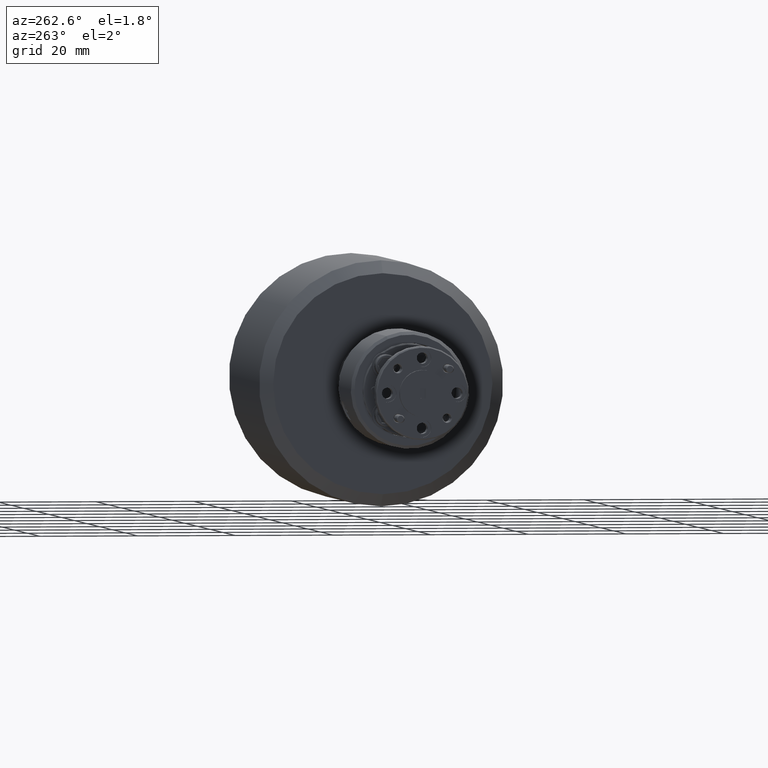
[diagram: clean part render]
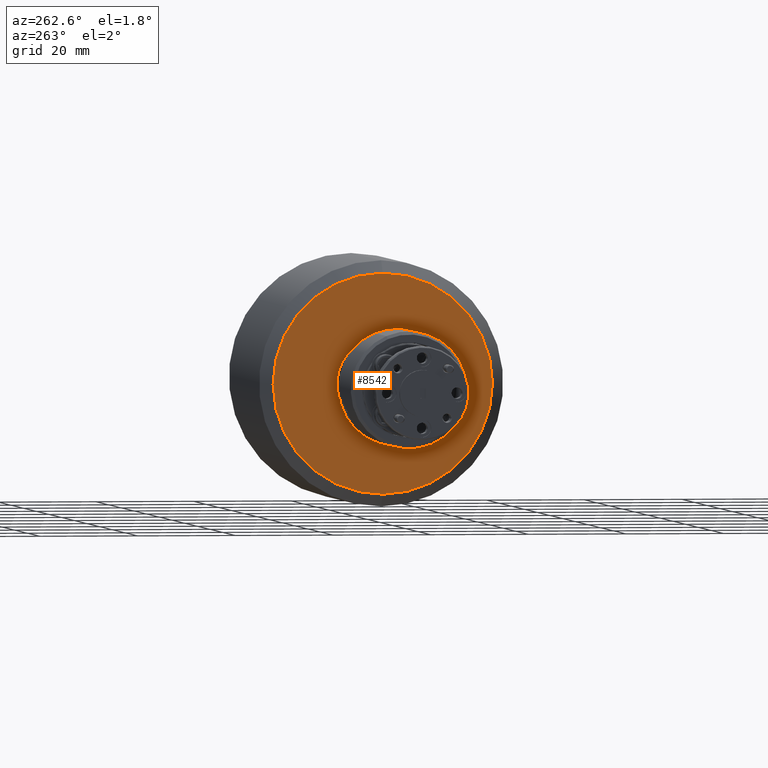
[diagram: same view with one face highlighted and labeled with its STEP entity id]
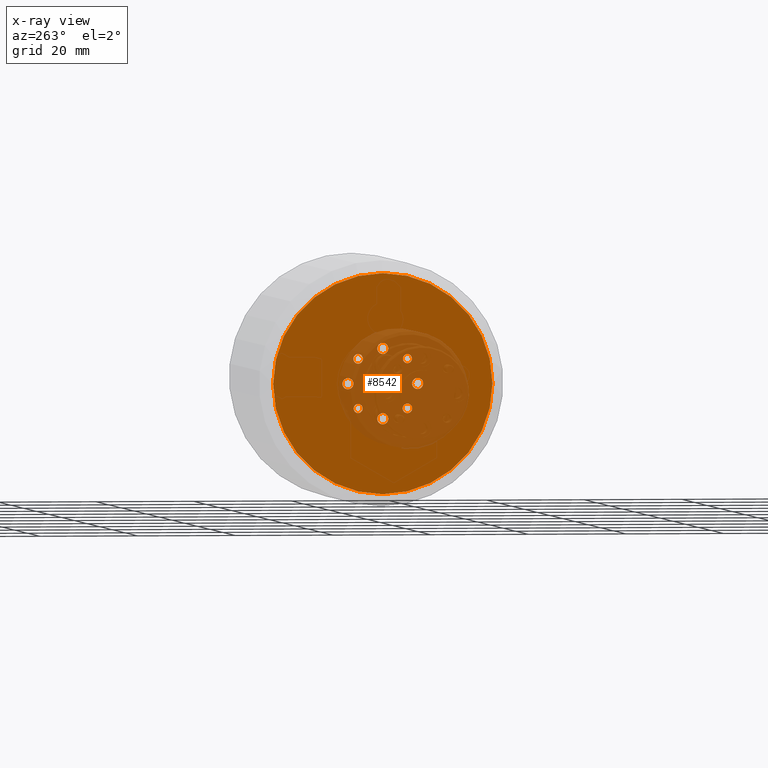
[diagram: x-ray of the same camera — body ghosted, the highlighted face saturated]
A machine part, auxiliary view. The second image highlights one B-rep face of the part: STEP entity #8542.
The next image is the same camera in x-ray: the body ghosted, the highlighted face saturated — about 31% of this face is hidden behind the body in this view.
In plain terms, the highlighted planar face has unit normal (-1, 0, 0).
Its self-contained STEP definition (entity closure, byte-faithful):
#505 = DIRECTION ( 'NONE',  ( -1.000000000000000000, -0.0000000000000000000, -0.0000000000000000000 ) ) ;
#957 = EDGE_CURVE ( 'NONE', #97054, #53642, #80066, .T. ) ;
#1145 = CIRCLE ( 'NONE', #77330, 0.9778999999999968800 ) ;
#1327 = VERTEX_POINT ( 'NONE', #23007 ) ;
#1942 = EDGE_CURVE ( 'NONE', #97440, #5264, #39251, .T. ) ;
#2422 = VECTOR ( 'NONE', #85121, 1000.000000000000000 ) ;
#3038 = CIRCLE ( 'NONE', #30300, 1.130299999999986800 ) ;
#3300 = DIRECTION ( 'NONE',  ( 0.0000000000000000000, 0.0000000000000000000, 1.000000000000000000 ) ) ;
#3582 = DIRECTION ( 'NONE',  ( 0.0000000000000000000, 0.0000000000000000000, 1.000000000000000000 ) ) ;
#3603 = CARTESIAN_POINT ( 'NONE',  ( 9.936688618866256200, 40.60670321229363100, 43.36040528329540700 ) ) ;
#3612 = EDGE_CURVE ( 'NONE', #85536, #101744, #50966, .T. ) ;
#3887 = EDGE_CURVE ( 'NONE', #80326, #20443, #48326, .T. ) ;
#4152 = DIRECTION ( 'NONE',  ( 0.0000000000000000000, 0.0000000000000000000, -1.000000000000000000 ) ) ;
#4415 = VERTEX_POINT ( 'NONE', #35551 ) ;
#4649 = DIRECTION ( 'NONE',  ( -1.000000000000000000, -0.0000000000000000000, -0.0000000000000000000 ) ) ;
#4709 = AXIS2_PLACEMENT_3D ( 'NONE', #27330, #51999, #75326 ) ;
#4799 = DIRECTION ( 'NONE',  ( 0.0000000000000000000, 0.0000000000000000000, 1.000000000000000000 ) ) ;
#5264 = VERTEX_POINT ( 'NONE', #22959 ) ;
#5784 = CIRCLE ( 'NONE', #42808, 1.130300000000000700 ) ;
#5845 = LINE ( 'NONE', #94682, #81611 ) ;
#6527 = AXIS2_PLACEMENT_3D ( 'NONE', #38301, #54135, #103538 ) ;
#7043 = CARTESIAN_POINT ( 'NONE',  ( 9.936688618866256200, 28.41922427225094000, 38.46589688397605000 ) ) ;
#7321 = CARTESIAN_POINT ( 'NONE',  ( 9.936688618866256200, 36.19479927225279400, 38.60560134325452000 ) ) ;
#7514 = DIRECTION ( 'NONE',  ( -1.000000000000000000, -0.0000000000000000000, -0.0000000000000000000 ) ) ;
#7614 = DIRECTION ( 'NONE',  ( 0.0000000000000000000, 0.0000000000000000000, 1.000000000000000000 ) ) ;
#7820 = CARTESIAN_POINT ( 'NONE',  ( 9.936688618866256200, 35.55979927225279600, 31.32850134325451600 ) ) ;
#7880 = DIRECTION ( 'NONE',  ( 0.0000000000000000000, 0.0000000000000000000, 1.000000000000000000 ) ) ;
#8022 = EDGE_CURVE ( 'NONE', #39429, #104680, #61617, .T. ) ;
#8088 = DIRECTION ( 'NONE',  ( -1.000000000000000000, -0.0000000000000000000, -0.0000000000000000000 ) ) ;
#8223 = CARTESIAN_POINT ( 'NONE',  ( 9.936688618866256200, 28.42239927225279000, 37.33560134325451700 ) ) ;
#8542 = ADVANCED_FACE ( 'NONE', ( #9840, #32631, #46477, #70444, #11159, #38885, #74241, #23672, #17389, #93195 ), #47144, .T. ) ;
#8723 = EDGE_CURVE ( 'NONE', #34648, #30242, #76660, .T. ) ;
#8829 = DIRECTION ( 'NONE',  ( 0.0000000000000000000, 0.0000000000000000000, 1.000000000000000000 ) ) ;
#9028 = EDGE_LOOP ( 'NONE', ( #102005, #81003, #55505, #38131 ) ) ;
#9135 = EDGE_CURVE ( 'NONE', #73668, #53098, #67729, .T. ) ;
#9840 = FACE_BOUND ( 'NONE', #56060, .T. ) ;
#9885 = CARTESIAN_POINT ( 'NONE',  ( 9.936688618866256200, 34.92479927225279800, 38.60560134325452000 ) ) ;
#10471 = EDGE_CURVE ( 'NONE', #5264, #38574, #5784, .T. ) ;
#10916 = AXIS2_PLACEMENT_3D ( 'NONE', #79744, #46572, #15118 ) ;
#11159 = FACE_BOUND ( 'NONE', #56767, .T. ) ;
#11649 = ORIENTED_EDGE ( 'NONE', *, *, #9135, .F. ) ;
#11746 = CARTESIAN_POINT ( 'NONE',  ( 9.936688618866256200, 36.19479927225279400, 38.60560134325452000 ) ) ;
#11806 = EDGE_LOOP ( 'NONE', ( #30874, #17792 ) ) ;
#11976 = CARTESIAN_POINT ( 'NONE',  ( 9.936688618866256200, 28.42239927225279000, 37.33560134325451700 ) ) ;
#12448 = CARTESIAN_POINT ( 'NONE',  ( 9.936688618866256200, 34.42950373153126300, 30.19502634325270300 ) ) ;
#12778 = DIRECTION ( 'NONE',  ( 0.0000000000000000000, 0.0000000000000000000, 1.000000000000000000 ) ) ;
#13165 = AXIS2_PLACEMENT_3D ( 'NONE', #66189, #83172, #58093 ) ;
#13877 = VERTEX_POINT ( 'NONE', #54983 ) ;
#14732 = DIRECTION ( 'NONE',  ( -1.000000000000000000, -0.0000000000000000000, -0.0000000000000000000 ) ) ;
#14814 = DIRECTION ( 'NONE',  ( 0.0000000000000000000, 0.0000000000000000000, 1.000000000000000000 ) ) ;
#14876 = VERTEX_POINT ( 'NONE', #79901 ) ;
#15118 = DIRECTION ( 'NONE',  ( 0.0000000000000000000, 0.0000000000000000000, 1.000000000000000000 ) ) ;
#15454 = CARTESIAN_POINT ( 'NONE',  ( 9.936688618866256200, 28.41604927225279200, 37.33560134325451700 ) ) ;
#16911 = EDGE_CURVE ( 'NONE', #30242, #34648, #82423, .T. ) ;
#16960 = VERTEX_POINT ( 'NONE', #44144 ) ;
#17205 = DIRECTION ( 'NONE',  ( 0.0000000000000000000, 0.0000000000000000000, 1.000000000000000000 ) ) ;
#17260 = DIRECTION ( 'NONE',  ( -1.000000000000000000, -0.0000000000000000000, -0.0000000000000000000 ) ) ;
#17389 = FACE_BOUND ( 'NONE', #9028, .T. ) ;
#17792 = ORIENTED_EDGE ( 'NONE', *, *, #8022, .F. ) ;
#19347 = DIRECTION ( 'NONE',  ( 0.0000000000000000000, 0.0000000000000000000, 1.000000000000000000 ) ) ;
#19518 = CARTESIAN_POINT ( 'NONE',  ( 9.936688618866256200, 36.69009481297432300, 44.47617634325633400 ) ) ;
#20443 = VERTEX_POINT ( 'NONE', #7321 ) ;
#22027 = AXIS2_PLACEMENT_3D ( 'NONE', #32964, #40713, #57246 ) ;
#22091 = ORIENTED_EDGE ( 'NONE', *, *, #23993, .F. ) ;
#22153 = EDGE_CURVE ( 'NONE', #14876, #64603, #37121, .T. ) ;
#22471 = AXIS2_PLACEMENT_3D ( 'NONE', #23285, #22589, #14814 ) ;
#22581 = EDGE_CURVE ( 'NONE', #98629, #16960, #79985, .T. ) ;
#22589 = DIRECTION ( 'NONE',  ( -1.000000000000000000, -0.0000000000000000000, -0.0000000000000000000 ) ) ;
#22752 = EDGE_CURVE ( 'NONE', #1327, #4415, #59799, .T. ) ;
#22959 = CARTESIAN_POINT ( 'NONE',  ( 9.936688618866256200, 28.42239927225279000, 36.20530134325451900 ) ) ;
#23007 = CARTESIAN_POINT ( 'NONE',  ( 9.936688618866256200, 35.55979927225279600, 14.87565134325452500 ) ) ;
#23258 = EDGE_LOOP ( 'NONE', ( #22091, #91082, #101971, #41035 ) ) ;
#23285 = CARTESIAN_POINT ( 'NONE',  ( 9.936688618866256200, 35.55979927225279600, 44.47300134325452300 ) ) ;
#23437 = CARTESIAN_POINT ( 'NONE',  ( 9.936688618866256200, 35.55979927225279600, 45.60965134325451200 ) ) ;
#23475 = CARTESIAN_POINT ( 'NONE',  ( 9.936688618866256200, 58.01974927225278800, 37.33560134325451700 ) ) ;
#23672 = FACE_BOUND ( 'NONE', #23258, .T. ) ;
#23993 = EDGE_CURVE ( 'NONE', #76235, #14876, #48239, .T. ) ;
#24126 = CARTESIAN_POINT ( 'NONE',  ( 9.936688618866256200, 28.42239927225279000, 38.46590134325452200 ) ) ;
#24488 = ORIENTED_EDGE ( 'NONE', *, *, #42077, .F. ) ;
#25157 = CARTESIAN_POINT ( 'NONE',  ( 9.936688618866256200, 30.51289533221190100, 42.38250528329535200 ) ) ;
#25577 = ORIENTED_EDGE ( 'NONE', *, *, #45517, .F. ) ;
#25953 = EDGE_CURVE ( 'NONE', #64016, #73668, #51673, .T. ) ;
#25956 = CIRCLE ( 'NONE', #73435, 1.130299999999986800 ) ;
#25991 = ORIENTED_EDGE ( 'NONE', *, *, #83910, .F. ) ;
#26698 = CARTESIAN_POINT ( 'NONE',  ( 9.936688618866256200, 36.69009481297432300, 30.19502634325278100 ) ) ;
#26856 = CARTESIAN_POINT ( 'NONE',  ( 9.936688618866256200, 42.69719927225279600, 36.20530134325451900 ) ) ;
#27139 = DIRECTION ( 'NONE',  ( -1.000000000000000000, -0.0000000000000000000, -0.0000000000000000000 ) ) ;
#27330 = CARTESIAN_POINT ( 'NONE',  ( 9.936688618866256200, 40.60670321229363100, 42.38250528329540900 ) ) ;
#27934 = DIRECTION ( 'NONE',  ( -1.000000000000000000, -0.0000000000000000000, -0.0000000000000000000 ) ) ;
#28048 = CARTESIAN_POINT ( 'NONE',  ( 9.936688618866256200, 42.70037427225448600, 38.46589688397605000 ) ) ;
#28990 = AXIS2_PLACEMENT_3D ( 'NONE', #90041, #17260, #43784 ) ;
#29078 = CARTESIAN_POINT ( 'NONE',  ( 9.936688618866256200, 30.51289533221195400, 33.26659740321362300 ) ) ;
#30242 = VERTEX_POINT ( 'NONE', #3603 ) ;
#30300 = AXIS2_PLACEMENT_3D ( 'NONE', #15454, #71942, #42327 ) ;
#30373 = AXIS2_PLACEMENT_3D ( 'NONE', #25157, #505, #81302 ) ;
#30415 = CARTESIAN_POINT ( 'NONE',  ( 9.936688618866256200, 30.51289533221195400, 31.31079740321363000 ) ) ;
#30874 = ORIENTED_EDGE ( 'NONE', *, *, #59888, .F. ) ;
#31682 = CARTESIAN_POINT ( 'NONE',  ( 9.936688618866256200, 40.60670321229368100, 31.36794740321368400 ) ) ;
#32289 = CIRCLE ( 'NONE', #41001, 1.130300000000000700 ) ;
#32485 = DIRECTION ( 'NONE',  ( -1.000000000000000000, -0.0000000000000000000, -0.0000000000000000000 ) ) ;
#32631 = FACE_BOUND ( 'NONE', #83256, .T. ) ;
#32964 = CARTESIAN_POINT ( 'NONE',  ( 9.936688618866256200, 42.69719927225279600, 37.33560134325451700 ) ) ;
#33772 = ORIENTED_EDGE ( 'NONE', *, *, #49283, .F. ) ;
#34648 = VERTEX_POINT ( 'NONE', #35859 ) ;
#34677 = AXIS2_PLACEMENT_3D ( 'NONE', #87831, #14732, #104679 ) ;
#34940 = DIRECTION ( 'NONE',  ( 0.0000000000000000000, 0.0000000000000000000, 1.000000000000000000 ) ) ;
#35389 = ORIENTED_EDGE ( 'NONE', *, *, #46511, .F. ) ;
#35434 = VERTEX_POINT ( 'NONE', #12448 ) ;
#35551 = CARTESIAN_POINT ( 'NONE',  ( 9.936688618866256200, 35.55979927225279600, 59.79555134325450900 ) ) ;
#35859 = CARTESIAN_POINT ( 'NONE',  ( 9.936688618866256200, 40.60670321229363100, 41.40460528329541000 ) ) ;
#35884 = DIRECTION ( 'NONE',  ( -1.000000000000000000, -0.0000000000000000000, -0.0000000000000000000 ) ) ;
#36089 = CARTESIAN_POINT ( 'NONE',  ( 9.936688618866256200, 42.70354927225280100, 37.33560134325451700 ) ) ;
#36940 = CARTESIAN_POINT ( 'NONE',  ( 9.936688618866256200, 30.51289533221195400, 32.28869740321362500 ) ) ;
#37121 = CIRCLE ( 'NONE', #22471, 1.130300000000000700 ) ;
#38131 = ORIENTED_EDGE ( 'NONE', *, *, #97846, .F. ) ;
#38301 = CARTESIAN_POINT ( 'NONE',  ( 9.936688618866256200, 40.60670321229368100, 32.28869740321368200 ) ) ;
#38574 = VERTEX_POINT ( 'NONE', #91887 ) ;
#38885 = FACE_BOUND ( 'NONE', #64918, .T. ) ;
#39251 = CIRCLE ( 'NONE', #40135, 1.130300000000000700 ) ;
#39429 = VERTEX_POINT ( 'NONE', #31682 ) ;
#40135 = AXIS2_PLACEMENT_3D ( 'NONE', #64387, #65428, #73224 ) ;
#40713 = DIRECTION ( 'NONE',  ( -1.000000000000000000, -0.0000000000000000000, -0.0000000000000000000 ) ) ;
#41001 = AXIS2_PLACEMENT_3D ( 'NONE', #8223, #48425, #7880 ) ;
#41035 = ORIENTED_EDGE ( 'NONE', *, *, #22153, .F. ) ;
#41816 = CIRCLE ( 'NONE', #34677, 1.130299999999986800 ) ;
#41838 = CARTESIAN_POINT ( 'NONE',  ( 9.936688618866256200, 28.41604927225279200, 37.33560134325451700 ) ) ;
#42077 = EDGE_CURVE ( 'NONE', #54083, #64016, #66525, .T. ) ;
#42327 = DIRECTION ( 'NONE',  ( 0.0000000000000000000, 0.0000000000000000000, 1.000000000000000000 ) ) ;
#42628 = AXIS2_PLACEMENT_3D ( 'NONE', #36089, #84109, #3300 ) ;
#42742 = AXIS2_PLACEMENT_3D ( 'NONE', #50510, #58616, #57924 ) ;
#42808 = AXIS2_PLACEMENT_3D ( 'NONE', #11976, #27139, #19347 ) ;
#42992 = CARTESIAN_POINT ( 'NONE',  ( 9.936688618866256200, 30.51289533221190100, 43.30325528329535000 ) ) ;
#43174 = CARTESIAN_POINT ( 'NONE',  ( 9.936688618866256200, 34.92479927225279800, 38.60560134325452000 ) ) ;
#43683 = CARTESIAN_POINT ( 'NONE',  ( 9.936688618866256200, 35.55979927225279600, 37.33560134325451700 ) ) ;
#43784 = DIRECTION ( 'NONE',  ( 0.0000000000000000000, 0.0000000000000000000, 1.000000000000000000 ) ) ;
#43956 = AXIS2_PLACEMENT_3D ( 'NONE', #41838, #96884, #82395 ) ;
#44043 = LINE ( 'NONE', #11746, #2422 ) ;
#44144 = CARTESIAN_POINT ( 'NONE',  ( 9.936688618866256200, 34.92479927225279100, 36.06560134325452100 ) ) ;
#44450 = EDGE_CURVE ( 'NONE', #53098, #97054, #99114, .T. ) ;
#45251 = CARTESIAN_POINT ( 'NONE',  ( 9.936688618866256200, 28.41604927225279200, 38.46590134325450800 ) ) ;
#45517 = EDGE_CURVE ( 'NONE', #101744, #85536, #91493, .T. ) ;
#46477 = FACE_BOUND ( 'NONE', #11806, .T. ) ;
#46511 = EDGE_CURVE ( 'NONE', #53642, #54083, #88966, .T. ) ;
#46572 = DIRECTION ( 'NONE',  ( -1.000000000000000000, -0.0000000000000000000, -0.0000000000000000000 ) ) ;
#46782 = EDGE_CURVE ( 'NONE', #64603, #73112, #58531, .T. ) ;
#46832 = CIRCLE ( 'NONE', #72546, 0.9778999999999968800 ) ;
#47144 = PLANE ( 'NONE',  #49978 ) ;
#47806 = CIRCLE ( 'NONE', #13165, 1.130299999999990300 ) ;
#47987 = ORIENTED_EDGE ( 'NONE', *, *, #61994, .F. ) ;
#48239 = CIRCLE ( 'NONE', #103263, 1.130300000000000700 ) ;
#48326 = LINE ( 'NONE', #9885, #96348 ) ;
#48425 = DIRECTION ( 'NONE',  ( -1.000000000000000000, -0.0000000000000000000, -0.0000000000000000000 ) ) ;
#48724 = DIRECTION ( 'NONE',  ( -0.0000000000000000000, 1.707404996040164300E-016, 1.000000000000000000 ) ) ;
#49283 = EDGE_CURVE ( 'NONE', #35434, #81497, #58818, .T. ) ;
#49978 = AXIS2_PLACEMENT_3D ( 'NONE', #23475, #104602, #55222 ) ;
#50510 = CARTESIAN_POINT ( 'NONE',  ( 9.936688618866256200, 35.55979927225279600, 37.33560134325451700 ) ) ;
#50966 = CIRCLE ( 'NONE', #91036, 0.9207499999999979600 ) ;
#51600 = ORIENTED_EDGE ( 'NONE', *, *, #1942, .F. ) ;
#51673 = CIRCLE ( 'NONE', #61566, 1.130300000000000700 ) ;
#51999 = DIRECTION ( 'NONE',  ( -1.000000000000000000, -0.0000000000000000000, -0.0000000000000000000 ) ) ;
#52031 = DIRECTION ( 'NONE',  ( -1.000000000000000000, -0.0000000000000000000, -0.0000000000000000000 ) ) ;
#52260 = CIRCLE ( 'NONE', #42742, 22.45994999999999200 ) ;
#53098 = VERTEX_POINT ( 'NONE', #28048 ) ;
#53642 = VERTEX_POINT ( 'NONE', #86014 ) ;
#53651 = CARTESIAN_POINT ( 'NONE',  ( 9.936688618866256200, 30.51289533221190100, 42.38250528329535200 ) ) ;
#53714 = ORIENTED_EDGE ( 'NONE', *, *, #67177, .F. ) ;
#54083 = VERTEX_POINT ( 'NONE', #91613 ) ;
#54135 = DIRECTION ( 'NONE',  ( -1.000000000000000000, -0.0000000000000000000, -0.0000000000000000000 ) ) ;
#54983 = CARTESIAN_POINT ( 'NONE',  ( 9.936688618866256200, 28.41604927225279200, 36.20530134325453300 ) ) ;
#55222 = DIRECTION ( 'NONE',  ( 0.0000000000000000000, 0.0000000000000000000, 1.000000000000000000 ) ) ;
#55505 = ORIENTED_EDGE ( 'NONE', *, *, #3887, .F. ) ;
#56060 = EDGE_LOOP ( 'NONE', ( #66008, #53714 ) ) ;
#56110 = DIRECTION ( 'NONE',  ( -1.000000000000000000, -0.0000000000000000000, -0.0000000000000000000 ) ) ;
#56767 = EDGE_LOOP ( 'NONE', ( #24488, #35389, #98864, #59487, #11649, #81854 ) ) ;
#57054 = EDGE_CURVE ( 'NONE', #73112, #76235, #41816, .T. ) ;
#57126 = CARTESIAN_POINT ( 'NONE',  ( 9.936688618866256200, 35.55979927225279600, 30.19820134325451700 ) ) ;
#57246 = DIRECTION ( 'NONE',  ( 0.0000000000000000000, 0.0000000000000000000, 1.000000000000000000 ) ) ;
#57924 = DIRECTION ( 'NONE',  ( 0.0000000000000000000, 0.0000000000000000000, -1.000000000000000000 ) ) ;
#58033 = AXIS2_PLACEMENT_3D ( 'NONE', #97021, #8088, #17205 ) ;
#58093 = DIRECTION ( 'NONE',  ( 0.0000000000000000000, 0.0000000000000000000, 1.000000000000000000 ) ) ;
#58531 = CIRCLE ( 'NONE', #10916, 1.130299999999986800 ) ;
#58616 = DIRECTION ( 'NONE',  ( 1.000000000000000000, -0.0000000000000000000, -0.0000000000000000000 ) ) ;
#58713 = EDGE_CURVE ( 'NONE', #72733, #35434, #47806, .T. ) ;
#58818 = CIRCLE ( 'NONE', #85422, 1.130300000000000700 ) ;
#59487 = ORIENTED_EDGE ( 'NONE', *, *, #44450, .F. ) ;
#59799 = CIRCLE ( 'NONE', #71160, 22.45994999999999200 ) ;
#59807 = EDGE_CURVE ( 'NONE', #38574, #13877, #25956, .T. ) ;
#59888 = EDGE_CURVE ( 'NONE', #104680, #39429, #75307, .T. ) ;
#60202 = CARTESIAN_POINT ( 'NONE',  ( 9.936688618866256200, 28.41604927225279200, 37.33560134325451700 ) ) ;
#60416 = EDGE_CURVE ( 'NONE', #61914, #97440, #32289, .T. ) ;
#61244 = DIRECTION ( 'NONE',  ( 0.0000000000000000000, 0.0000000000000000000, 1.000000000000000000 ) ) ;
#61566 = AXIS2_PLACEMENT_3D ( 'NONE', #81219, #56110, #89721 ) ;
#61617 = CIRCLE ( 'NONE', #58033, 0.9207499999999979600 ) ;
#61658 = EDGE_LOOP ( 'NONE', ( #33772, #79634, #87053 ) ) ;
#61914 = VERTEX_POINT ( 'NONE', #7043 ) ;
#61994 = EDGE_CURVE ( 'NONE', #13877, #75064, #3038, .T. ) ;
#62289 = VECTOR ( 'NONE', #88935, 1000.000000000000000 ) ;
#62783 = EDGE_LOOP ( 'NONE', ( #80519, #25577 ) ) ;
#63238 = DIRECTION ( 'NONE',  ( 0.0000000000000000000, 0.0000000000000000000, 1.000000000000000000 ) ) ;
#64016 = VERTEX_POINT ( 'NONE', #26856 ) ;
#64387 = CARTESIAN_POINT ( 'NONE',  ( 9.936688618866256200, 28.42239927225279000, 37.33560134325451700 ) ) ;
#64603 = VERTEX_POINT ( 'NONE', #103129 ) ;
#64751 = ORIENTED_EDGE ( 'NONE', *, *, #8723, .F. ) ;
#64918 = EDGE_LOOP ( 'NONE', ( #86901, #25991, #47987, #67053, #78445, #51600 ) ) ;
#65428 = DIRECTION ( 'NONE',  ( -1.000000000000000000, -0.0000000000000000000, -0.0000000000000000000 ) ) ;
#66008 = ORIENTED_EDGE ( 'NONE', *, *, #103126, .F. ) ;
#66160 = CARTESIAN_POINT ( 'NONE',  ( 9.936688618866256200, 30.51289533221190100, 41.46175528329535400 ) ) ;
#66189 = CARTESIAN_POINT ( 'NONE',  ( 9.936688618866256200, 35.55979927225279600, 30.19185134325451600 ) ) ;
#66525 = CIRCLE ( 'NONE', #22027, 1.130300000000000700 ) ;
#67053 = ORIENTED_EDGE ( 'NONE', *, *, #59807, .F. ) ;
#67177 = EDGE_CURVE ( 'NONE', #76523, #102022, #1145, .T. ) ;
#67429 = CARTESIAN_POINT ( 'NONE',  ( 9.936688618866256200, 30.51289533221195400, 32.28869740321362500 ) ) ;
#67729 = CIRCLE ( 'NONE', #84699, 1.130300000000000700 ) ;
#69436 = EDGE_CURVE ( 'NONE', #81497, #72733, #93249, .T. ) ;
#70444 = FACE_BOUND ( 'NONE', #62783, .T. ) ;
#70660 = CARTESIAN_POINT ( 'NONE',  ( 9.936688618866256200, 42.70354927225280100, 37.33560134325451700 ) ) ;
#71160 = AXIS2_PLACEMENT_3D ( 'NONE', #43683, #84269, #4152 ) ;
#71942 = DIRECTION ( 'NONE',  ( -1.000000000000000000, -0.0000000000000000000, -0.0000000000000000000 ) ) ;
#72546 = AXIS2_PLACEMENT_3D ( 'NONE', #36940, #101476, #61244 ) ;
#72733 = VERTEX_POINT ( 'NONE', #26698 ) ;
#73112 = VERTEX_POINT ( 'NONE', #23437 ) ;
#73224 = DIRECTION ( 'NONE',  ( 0.0000000000000000000, 0.0000000000000000000, 1.000000000000000000 ) ) ;
#73435 = AXIS2_PLACEMENT_3D ( 'NONE', #60202, #35884, #4799 ) ;
#73668 = VERTEX_POINT ( 'NONE', #90777 ) ;
#74095 = DIRECTION ( 'NONE',  ( 0.0000000000000000000, 1.000000000000000000, 0.0000000000000000000 ) ) ;
#74241 = FACE_BOUND ( 'NONE', #61658, .T. ) ;
#75064 = VERTEX_POINT ( 'NONE', #45251 ) ;
#75307 = CIRCLE ( 'NONE', #6527, 0.9207499999999979600 ) ;
#75326 = DIRECTION ( 'NONE',  ( 0.0000000000000000000, 0.0000000000000000000, 1.000000000000000000 ) ) ;
#75362 = CARTESIAN_POINT ( 'NONE',  ( 9.936688618866256200, 35.55979927225279600, 30.19820134325451700 ) ) ;
#76235 = VERTEX_POINT ( 'NONE', #19518 ) ;
#76523 = VERTEX_POINT ( 'NONE', #30415 ) ;
#76660 = CIRCLE ( 'NONE', #4709, 0.9778999999999968800 ) ;
#77330 = AXIS2_PLACEMENT_3D ( 'NONE', #67429, #27934, #3582 ) ;
#78445 = ORIENTED_EDGE ( 'NONE', *, *, #10471, .F. ) ;
#78728 = DIRECTION ( 'NONE',  ( -1.000000000000000000, -0.0000000000000000000, -0.0000000000000000000 ) ) ;
#79634 = ORIENTED_EDGE ( 'NONE', *, *, #58713, .F. ) ;
#79744 = CARTESIAN_POINT ( 'NONE',  ( 9.936688618866256200, 35.55979927225279600, 44.47935134325452100 ) ) ;
#79901 = CARTESIAN_POINT ( 'NONE',  ( 9.936688618866256200, 35.55979927225279600, 43.34270134325451800 ) ) ;
#79985 = LINE ( 'NONE', #82189, #62289 ) ;
#80066 = CIRCLE ( 'NONE', #84050, 1.130299999999986800 ) ;
#80326 = VERTEX_POINT ( 'NONE', #43174 ) ;
#80519 = ORIENTED_EDGE ( 'NONE', *, *, #3612, .F. ) ;
#81003 = ORIENTED_EDGE ( 'NONE', *, *, #95814, .F. ) ;
#81013 = CARTESIAN_POINT ( 'NONE',  ( 9.936688618866256200, 35.55979927225279600, 44.47300134325452300 ) ) ;
#81219 = CARTESIAN_POINT ( 'NONE',  ( 9.936688618866256200, 42.69719927225279600, 37.33560134325451700 ) ) ;
#81302 = DIRECTION ( 'NONE',  ( 0.0000000000000000000, 0.0000000000000000000, 1.000000000000000000 ) ) ;
#81353 = DIRECTION ( 'NONE',  ( -1.000000000000000000, -0.0000000000000000000, -0.0000000000000000000 ) ) ;
#81497 = VERTEX_POINT ( 'NONE', #7820 ) ;
#81611 = VECTOR ( 'NONE', #48724, 1000.000000000000000 ) ;
#81854 = ORIENTED_EDGE ( 'NONE', *, *, #25953, .F. ) ;
#82189 = CARTESIAN_POINT ( 'NONE',  ( 9.936688618866256200, 34.92479927225279800, 36.06560134325452100 ) ) ;
#82395 = DIRECTION ( 'NONE',  ( 0.0000000000000000000, 0.0000000000000000000, 1.000000000000000000 ) ) ;
#82423 = CIRCLE ( 'NONE', #28990, 0.9778999999999968800 ) ;
#83172 = DIRECTION ( 'NONE',  ( -1.000000000000000000, -0.0000000000000000000, -0.0000000000000000000 ) ) ;
#83256 = EDGE_LOOP ( 'NONE', ( #89660, #64751 ) ) ;
#83497 = DIRECTION ( 'NONE',  ( 0.0000000000000000000, 0.0000000000000000000, 1.000000000000000000 ) ) ;
#83910 = EDGE_CURVE ( 'NONE', #75064, #61914, #87453, .T. ) ;
#84050 = AXIS2_PLACEMENT_3D ( 'NONE', #70660, #7514, #63238 ) ;
#84109 = DIRECTION ( 'NONE',  ( -1.000000000000000000, -0.0000000000000000000, -0.0000000000000000000 ) ) ;
#84269 = DIRECTION ( 'NONE',  ( 1.000000000000000000, -0.0000000000000000000, -0.0000000000000000000 ) ) ;
#84699 = AXIS2_PLACEMENT_3D ( 'NONE', #101299, #4649, #12778 ) ;
#85121 = DIRECTION ( 'NONE',  ( 0.0000000000000000000, -1.707404996040164300E-016, -1.000000000000000000 ) ) ;
#85124 = AXIS2_PLACEMENT_3D ( 'NONE', #89707, #99489, #34940 ) ;
#85422 = AXIS2_PLACEMENT_3D ( 'NONE', #57126, #32485, #8829 ) ;
#85536 = VERTEX_POINT ( 'NONE', #42992 ) ;
#85868 = CARTESIAN_POINT ( 'NONE',  ( 9.936688618866256200, 36.19479927225278700, 36.06560134325452100 ) ) ;
#86014 = CARTESIAN_POINT ( 'NONE',  ( 9.936688618866256200, 42.70354927225280100, 36.20530134325453300 ) ) ;
#86901 = ORIENTED_EDGE ( 'NONE', *, *, #60416, .F. ) ;
#87053 = ORIENTED_EDGE ( 'NONE', *, *, #69436, .F. ) ;
#87242 = DIRECTION ( 'NONE',  ( 0.0000000000000000000, 0.0000000000000000000, 1.000000000000000000 ) ) ;
#87453 = CIRCLE ( 'NONE', #43956, 1.130299999999986800 ) ;
#87831 = CARTESIAN_POINT ( 'NONE',  ( 9.936688618866256200, 35.55979927225279600, 44.47935134325452100 ) ) ;
#88935 = DIRECTION ( 'NONE',  ( -0.0000000000000000000, -1.000000000000000000, -0.0000000000000000000 ) ) ;
#88966 = CIRCLE ( 'NONE', #42628, 1.130299999999986800 ) ;
#89660 = ORIENTED_EDGE ( 'NONE', *, *, #16911, .F. ) ;
#89707 = CARTESIAN_POINT ( 'NONE',  ( 9.936688618866256200, 42.70354927225280100, 37.33560134325451700 ) ) ;
#89721 = DIRECTION ( 'NONE',  ( 0.0000000000000000000, 0.0000000000000000000, 1.000000000000000000 ) ) ;
#90041 = CARTESIAN_POINT ( 'NONE',  ( 9.936688618866256200, 40.60670321229363100, 42.38250528329540900 ) ) ;
#90777 = CARTESIAN_POINT ( 'NONE',  ( 9.936688618866256200, 42.69719927225279600, 38.46590134325452200 ) ) ;
#91036 = AXIS2_PLACEMENT_3D ( 'NONE', #53651, #78728, #87242 ) ;
#91082 = ORIENTED_EDGE ( 'NONE', *, *, #57054, .F. ) ;
#91439 = CARTESIAN_POINT ( 'NONE',  ( 9.936688618866256200, 40.60670321229368100, 33.20944740321368000 ) ) ;
#91493 = CIRCLE ( 'NONE', #30373, 0.9207499999999979600 ) ;
#91613 = CARTESIAN_POINT ( 'NONE',  ( 9.936688618866256200, 42.70037427225448600, 36.20530580253298300 ) ) ;
#91887 = CARTESIAN_POINT ( 'NONE',  ( 9.936688618866256200, 28.41922427225101800, 36.20530580253298300 ) ) ;
#93195 = FACE_OUTER_BOUND ( 'NONE', #101292, .T. ) ;
#93249 = CIRCLE ( 'NONE', #99106, 1.130300000000000700 ) ;
#94682 = CARTESIAN_POINT ( 'NONE',  ( 9.936688618866256200, 34.92479927225279800, 38.60560134325452000 ) ) ;
#95220 = ORIENTED_EDGE ( 'NONE', *, *, #22752, .F. ) ;
#95222 = ORIENTED_EDGE ( 'NONE', *, *, #100823, .F. ) ;
#95814 = EDGE_CURVE ( 'NONE', #20443, #98629, #44043, .T. ) ;
#96348 = VECTOR ( 'NONE', #74095, 1000.000000000000000 ) ;
#96884 = DIRECTION ( 'NONE',  ( -1.000000000000000000, -0.0000000000000000000, -0.0000000000000000000 ) ) ;
#97021 = CARTESIAN_POINT ( 'NONE',  ( 9.936688618866256200, 40.60670321229368100, 32.28869740321368200 ) ) ;
#97054 = VERTEX_POINT ( 'NONE', #103858 ) ;
#97440 = VERTEX_POINT ( 'NONE', #24126 ) ;
#97846 = EDGE_CURVE ( 'NONE', #16960, #80326, #5845, .T. ) ;
#98629 = VERTEX_POINT ( 'NONE', #85868 ) ;
#98864 = ORIENTED_EDGE ( 'NONE', *, *, #957, .F. ) ;
#99106 = AXIS2_PLACEMENT_3D ( 'NONE', #75362, #52031, #83497 ) ;
#99114 = CIRCLE ( 'NONE', #85124, 1.130299999999986800 ) ;
#99489 = DIRECTION ( 'NONE',  ( -1.000000000000000000, -0.0000000000000000000, -0.0000000000000000000 ) ) ;
#100823 = EDGE_CURVE ( 'NONE', #4415, #1327, #52260, .T. ) ;
#101292 = EDGE_LOOP ( 'NONE', ( #95220, #95222 ) ) ;
#101299 = CARTESIAN_POINT ( 'NONE',  ( 9.936688618866256200, 42.69719927225279600, 37.33560134325451700 ) ) ;
#101476 = DIRECTION ( 'NONE',  ( -1.000000000000000000, -0.0000000000000000000, -0.0000000000000000000 ) ) ;
#101744 = VERTEX_POINT ( 'NONE', #66160 ) ;
#101971 = ORIENTED_EDGE ( 'NONE', *, *, #46782, .F. ) ;
#102005 = ORIENTED_EDGE ( 'NONE', *, *, #22581, .F. ) ;
#102022 = VERTEX_POINT ( 'NONE', #29078 ) ;
#103126 = EDGE_CURVE ( 'NONE', #102022, #76523, #46832, .T. ) ;
#103129 = CARTESIAN_POINT ( 'NONE',  ( 9.936688618866256200, 34.42950373153126300, 44.47617634325633400 ) ) ;
#103263 = AXIS2_PLACEMENT_3D ( 'NONE', #81013, #81353, #7614 ) ;
#103538 = DIRECTION ( 'NONE',  ( 0.0000000000000000000, 0.0000000000000000000, 1.000000000000000000 ) ) ;
#103858 = CARTESIAN_POINT ( 'NONE',  ( 9.936688618866256200, 42.70354927225280100, 38.46590134325450800 ) ) ;
#104602 = DIRECTION ( 'NONE',  ( -1.000000000000000000, 0.0000000000000000000, 0.0000000000000000000 ) ) ;
#104679 = DIRECTION ( 'NONE',  ( 0.0000000000000000000, 0.0000000000000000000, 1.000000000000000000 ) ) ;
#104680 = VERTEX_POINT ( 'NONE', #91439 ) ;